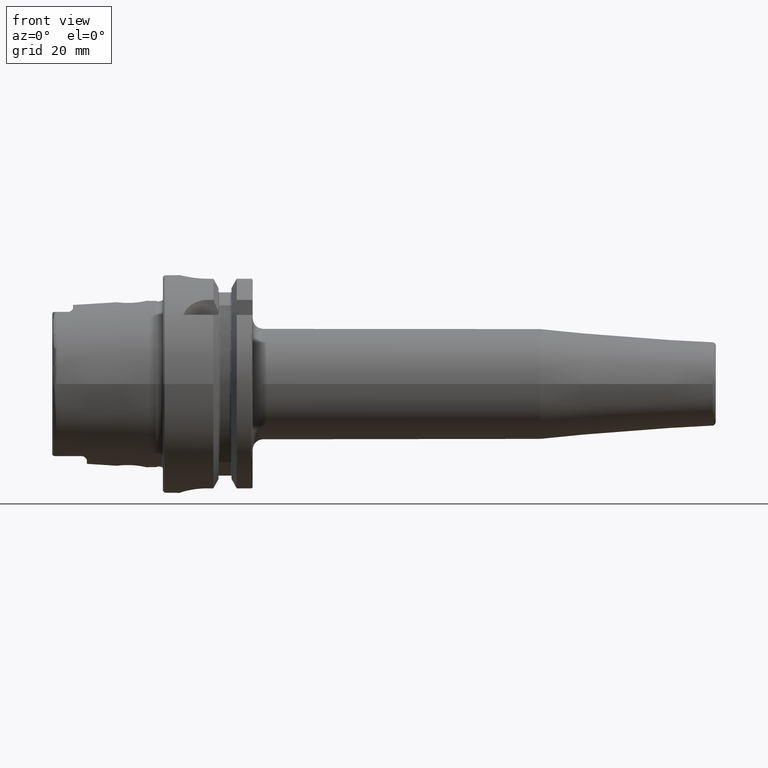
[diagram: clean part render]
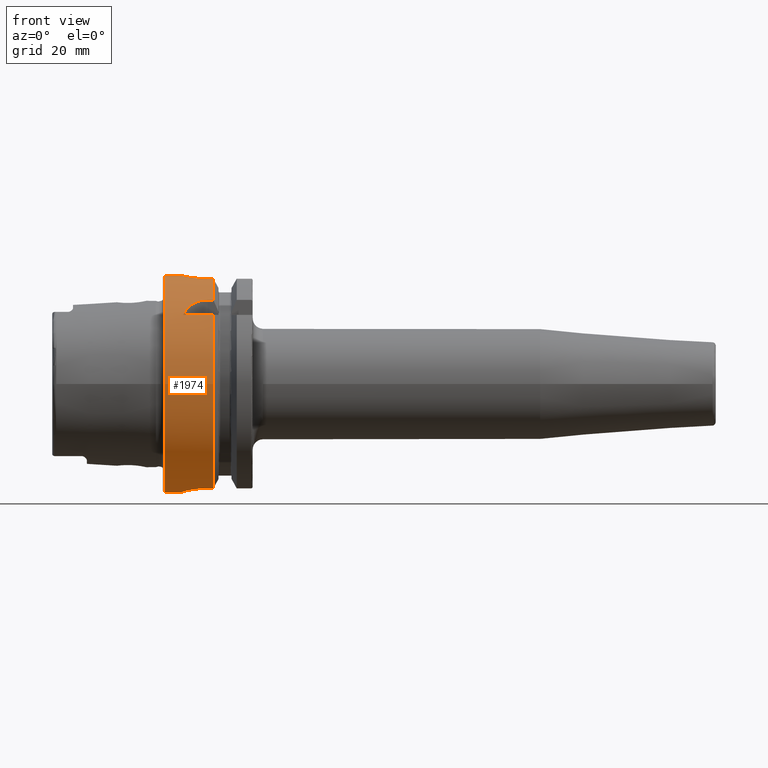
[diagram: same view with one face highlighted and labeled with its STEP entity id]
A machine part, front view. The second image highlights one B-rep face of the part: STEP entity #1974.
In plain terms, the highlighted cylindrical surface (bore or boss wall) has radius 31.5 mm, axis along (1, 0, 0).
Its self-contained STEP definition (entity closure, byte-faithful):
#57=B_SPLINE_CURVE_WITH_KNOTS('',3,(#3648,#3649,#3650,#3651,#3652,#3653,
#3654,#3655,#3656,#3657,#3658,#3659,#3660,#3661,#3662,#3663,#3664,#3665,
#3666,#3667,#3668,#3669,#3670,#3671,#3672,#3673),.UNSPECIFIED.,.F.,.F.,
(4,2,2,2,2,2,2,2,2,2,2,2,4),(0.,0.188688694287612,0.377377388575223,0.56606194688798,
0.754746505200737,0.943431063513494,1.13211562182625,1.32080431611386,1.50949301040147,
1.69818170468909,1.8868703989767,2.07555495728945,2.26423951560221),
 .UNSPECIFIED.);
#58=B_SPLINE_CURVE_WITH_KNOTS('',3,(#3674,#3675,#3676,#3677,#3678,#3679,
#3680,#3681,#3682,#3683),.UNSPECIFIED.,.F.,.F.,(4,2,2,2,4),(2.26423951560221,
2.45292407391497,2.64160863222773,2.83029732651534,3.01898602080295),
 .UNSPECIFIED.);
#61=B_SPLINE_CURVE_WITH_KNOTS('',3,(#3740,#3741,#3742,#3743,#3744,#3745,
#3746,#3747,#3748,#3749,#3750,#3751),.UNSPECIFIED.,.F.,.F.,(4,2,2,2,2,4),
(1.1085154204615,1.31979218709236,1.52798350480179,1.73617482251122,1.90421770126337,
2.07226058001552),.UNSPECIFIED.);
#71=B_SPLINE_CURVE_WITH_KNOTS('',3,(#3920,#3921,#3922,#3923,#3924,#3925,
#3926,#3927,#3928,#3929),.UNSPECIFIED.,.F.,.F.,(4,2,2,2,4),(1.20927420824097,
1.5131742975437,1.81707438684643,2.12000449915965,2.42293461147287),
 .UNSPECIFIED.);
#74=B_SPLINE_CURVE_WITH_KNOTS('',3,(#3955,#3956,#3957,#3958,#3959,#3960,
#3961,#3962,#3963,#3964),.UNSPECIFIED.,.F.,.F.,(4,2,2,2,4),(0.,0.30293011231322,
0.605860224626439,0.90976031392917,1.2136604032319),.UNSPECIFIED.);
#84=B_SPLINE_CURVE_WITH_KNOTS('',3,(#4110,#4111,#4112,#4113,#4114,#4115,
#4116,#4117,#4118,#4119,#4120,#4121,#4122,#4123,#4124,#4125,#4126,#4127),
 .UNSPECIFIED.,.F.,.F.,(4,2,2,2,2,2,2,2,4),(0.,0.302805879979318,0.605611759958635,
0.908372461246501,1.21113316253437,1.51389386382223,1.8166545651101,2.11946044508942,
2.42226632506874),.UNSPECIFIED.);
#117=FACE_BOUND('',#381,.T.);
#260=FACE_OUTER_BOUND('',#380,.T.);
#380=EDGE_LOOP('',(#1664,#1665,#1666,#1667,#1668,#1669,#1670,#1671,#1672,
#1673,#1674,#1675,#1676,#1677,#1678,#1679,#1680,#1681));
#381=EDGE_LOOP('',(#1682,#1683));
#473=LINE('',#3715,#577);
#478=LINE('',#3760,#582);
#496=LINE('',#3937,#600);
#497=LINE('',#3941,#601);
#509=LINE('',#4104,#613);
#512=LINE('',#4134,#616);
#514=LINE('',#4140,#618);
#577=VECTOR('',#2504,10.);
#582=VECTOR('',#2515,10.);
#600=VECTOR('',#2579,10.);
#601=VECTOR('',#2582,10.);
#613=VECTOR('',#2660,10.);
#616=VECTOR('',#2671,10.);
#618=VECTOR('',#2679,31.5);
#684=CIRCLE('',#2134,31.5);
#685=CIRCLE('',#2135,31.5);
#693=CIRCLE('',#2155,31.5);
#694=CIRCLE('',#2157,31.5);
#708=CIRCLE('',#2192,31.5);
#709=CIRCLE('',#2193,31.5);
#849=VERTEX_POINT('',#3645);
#850=VERTEX_POINT('',#3647);
#858=VERTEX_POINT('',#3712);
#859=VERTEX_POINT('',#3714);
#863=VERTEX_POINT('',#3739);
#865=VERTEX_POINT('',#3756);
#870=VERTEX_POINT('',#3772);
#871=VERTEX_POINT('',#3774);
#896=VERTEX_POINT('',#3918);
#897=VERTEX_POINT('',#3919);
#898=VERTEX_POINT('',#3939);
#899=VERTEX_POINT('',#3940);
#902=VERTEX_POINT('',#3954);
#903=VERTEX_POINT('',#3969);
#919=VERTEX_POINT('',#4101);
#920=VERTEX_POINT('',#4103);
#921=VERTEX_POINT('',#4109);
#923=VERTEX_POINT('',#4139);
#1077=EDGE_CURVE('',#850,#849,#57,.T.);
#1078=EDGE_CURVE('',#849,#850,#58,.T.);
#1087=EDGE_CURVE('',#859,#858,#473,.T.);
#1093=EDGE_CURVE('',#858,#863,#61,.T.);
#1097=EDGE_CURVE('',#863,#865,#478,.T.);
#1103=EDGE_CURVE('',#859,#870,#684,.T.);
#1104=EDGE_CURVE('',#870,#871,#685,.T.);
#1138=EDGE_CURVE('',#896,#897,#71,.T.);
#1142=EDGE_CURVE('',#897,#871,#496,.T.);
#1143=EDGE_CURVE('',#898,#899,#497,.T.);
#1148=EDGE_CURVE('',#899,#902,#74,.T.);
#1150=EDGE_CURVE('',#902,#896,#693,.T.);
#1151=EDGE_CURVE('',#898,#903,#694,.T.);
#1183=EDGE_CURVE('',#920,#919,#509,.T.);
#1185=EDGE_CURVE('',#919,#921,#84,.T.);
#1189=EDGE_CURVE('',#921,#903,#512,.T.);
#1191=EDGE_CURVE('',#920,#865,#708,.T.);
#1192=EDGE_CURVE('',#870,#923,#514,.T.);
#1193=EDGE_CURVE('',#923,#923,#709,.T.);
#1664=ORIENTED_EDGE('',*,*,#1097,.T.);
#1665=ORIENTED_EDGE('',*,*,#1191,.F.);
#1666=ORIENTED_EDGE('',*,*,#1183,.T.);
#1667=ORIENTED_EDGE('',*,*,#1185,.T.);
#1668=ORIENTED_EDGE('',*,*,#1189,.T.);
#1669=ORIENTED_EDGE('',*,*,#1151,.F.);
#1670=ORIENTED_EDGE('',*,*,#1143,.T.);
#1671=ORIENTED_EDGE('',*,*,#1148,.T.);
#1672=ORIENTED_EDGE('',*,*,#1150,.T.);
#1673=ORIENTED_EDGE('',*,*,#1138,.T.);
#1674=ORIENTED_EDGE('',*,*,#1142,.T.);
#1675=ORIENTED_EDGE('',*,*,#1104,.F.);
#1676=ORIENTED_EDGE('',*,*,#1192,.T.);
#1677=ORIENTED_EDGE('',*,*,#1193,.T.);
#1678=ORIENTED_EDGE('',*,*,#1192,.F.);
#1679=ORIENTED_EDGE('',*,*,#1103,.F.);
#1680=ORIENTED_EDGE('',*,*,#1087,.T.);
#1681=ORIENTED_EDGE('',*,*,#1093,.T.);
#1682=ORIENTED_EDGE('',*,*,#1077,.T.);
#1683=ORIENTED_EDGE('',*,*,#1078,.T.);
#1889=CYLINDRICAL_SURFACE('',#2191,31.5);
#1974=ADVANCED_FACE('',(#260,#117),#1889,.T.);
#2134=AXIS2_PLACEMENT_3D('',#3773,#2528,#2529);
#2135=AXIS2_PLACEMENT_3D('',#3775,#2530,#2531);
#2155=AXIS2_PLACEMENT_3D('',#3967,#2590,#2591);
#2157=AXIS2_PLACEMENT_3D('',#3970,#2594,#2595);
#2191=AXIS2_PLACEMENT_3D('',#4137,#2675,#2676);
#2192=AXIS2_PLACEMENT_3D('',#4138,#2677,#2678);
#2193=AXIS2_PLACEMENT_3D('',#4141,#2680,#2681);
#2504=DIRECTION('',(-1.,0.,0.));
#2515=DIRECTION('',(1.,0.,0.));
#2528=DIRECTION('center_axis',(1.,0.,0.));
#2529=DIRECTION('ref_axis',(0.,0.,-1.));
#2530=DIRECTION('center_axis',(1.,0.,0.));
#2531=DIRECTION('ref_axis',(0.,0.,-1.));
#2579=DIRECTION('',(1.,0.,0.));
#2582=DIRECTION('',(-1.,0.,0.));
#2590=DIRECTION('center_axis',(-1.,0.,0.));
#2591=DIRECTION('ref_axis',(0.,1.,0.));
#2594=DIRECTION('center_axis',(1.,0.,0.));
#2595=DIRECTION('ref_axis',(0.,0.,-1.));
#2660=DIRECTION('',(-1.,0.,0.));
#2671=DIRECTION('',(1.,0.,0.));
#2675=DIRECTION('center_axis',(1.,0.,0.));
#2676=DIRECTION('ref_axis',(0.,1.,0.));
#2677=DIRECTION('center_axis',(1.,0.,0.));
#2678=DIRECTION('ref_axis',(0.,0.,-1.));
#2679=DIRECTION('',(-1.,0.,0.));
#2680=DIRECTION('center_axis',(1.,0.,0.));
#2681=DIRECTION('ref_axis',(0.,0.,-1.));
#3645=CARTESIAN_POINT('',(12.,31.5,-6.12323399573677E-16));
#3647=CARTESIAN_POINT('',(7.,31.100643080168,5.));
#3648=CARTESIAN_POINT('Ctrl Pts',(7.,31.100643080168,5.));
#3649=CARTESIAN_POINT('Ctrl Pts',(6.37103768570796,31.100643080168,5.));
#3650=CARTESIAN_POINT('Ctrl Pts',(5.70089281579202,31.1216953112949,4.87408354368814));
#3651=CARTESIAN_POINT('Ctrl Pts',(4.46931934300962,31.1973810209855,4.36348784122736));
#3652=CARTESIAN_POINT('Ctrl Pts',(3.90779781350673,31.2508828501623,3.97886562537221));
#3653=CARTESIAN_POINT('Ctrl Pts',(3.021144092268,31.3510329557602,3.09221190413348));
#3654=CARTESIAN_POINT('Ctrl Pts',(2.63651425348544,31.4042391414288,2.5306861925578));
#3655=CARTESIAN_POINT('Ctrl Pts',(2.12591301120586,31.4792463697936,1.29909839144709));
#3656=CARTESIAN_POINT('Ctrl Pts',(2.,31.5,0.62894852770919));
#3657=CARTESIAN_POINT('Ctrl Pts',(2.,31.5,-0.62894852770919));
#3658=CARTESIAN_POINT('Ctrl Pts',(2.12591301120586,31.4792463697936,-1.29909839144709));
#3659=CARTESIAN_POINT('Ctrl Pts',(2.63651425348544,31.4042391414288,-2.5306861925578));
#3660=CARTESIAN_POINT('Ctrl Pts',(3.021144092268,31.3510329557602,-3.09221190413348));
#3661=CARTESIAN_POINT('Ctrl Pts',(3.90779781350673,31.2508828501623,-3.97886562537221));
#3662=CARTESIAN_POINT('Ctrl Pts',(4.46931934300962,31.1973810209855,-4.36348784122736));
#3663=CARTESIAN_POINT('Ctrl Pts',(5.70089281579202,31.1216953112949,-4.87408354368814));
#3664=CARTESIAN_POINT('Ctrl Pts',(6.37103768570796,31.100643080168,-5.));
#3665=CARTESIAN_POINT('Ctrl Pts',(7.62896231429204,31.100643080168,-5.));
#3666=CARTESIAN_POINT('Ctrl Pts',(8.29910718420798,31.1216953112949,-4.87408354368814));
#3667=CARTESIAN_POINT('Ctrl Pts',(9.53068065699038,31.1973810209855,-4.36348784122736));
#3668=CARTESIAN_POINT('Ctrl Pts',(10.0922021864933,31.2508828501623,-3.97886562537221));
#3669=CARTESIAN_POINT('Ctrl Pts',(10.978855907732,31.3510329557602,-3.09221190413348));
#3670=CARTESIAN_POINT('Ctrl Pts',(11.3634857465146,31.4042391414288,-2.53068619255779));
#3671=CARTESIAN_POINT('Ctrl Pts',(11.8740869887941,31.4792463697936,-1.29909839144708));
#3672=CARTESIAN_POINT('Ctrl Pts',(12.,31.5,-0.62894852770919));
#3673=CARTESIAN_POINT('Ctrl Pts',(12.,31.5,-4.16333634234434E-16));
#3674=CARTESIAN_POINT('Ctrl Pts',(12.,31.5,-1.11022302462516E-15));
#3675=CARTESIAN_POINT('Ctrl Pts',(12.,31.5,0.628948527709188));
#3676=CARTESIAN_POINT('Ctrl Pts',(11.8740869887941,31.4792463697936,1.29909839144708));
#3677=CARTESIAN_POINT('Ctrl Pts',(11.3634857465146,31.4042391414288,2.53068619255779));
#3678=CARTESIAN_POINT('Ctrl Pts',(10.978855907732,31.3510329557602,3.09221190413348));
#3679=CARTESIAN_POINT('Ctrl Pts',(10.0922021864933,31.2508828501623,3.97886562537221));
#3680=CARTESIAN_POINT('Ctrl Pts',(9.53068065699038,31.1973810209855,4.36348784122736));
#3681=CARTESIAN_POINT('Ctrl Pts',(8.29910718420798,31.1216953112949,4.87408354368814));
#3682=CARTESIAN_POINT('Ctrl Pts',(7.62896231429204,31.100643080168,5.));
#3683=CARTESIAN_POINT('Ctrl Pts',(7.,31.100643080168,5.));
#3712=CARTESIAN_POINT('',(5.88828609634419,-24.3361870472759,20.));
#3714=CARTESIAN_POINT('',(14.6225009252407,-24.3361870472759,20.));
#3715=CARTESIAN_POINT('',(7.56125046262034,-24.3361870472759,20.));
#3739=CARTESIAN_POINT('',(13.,-20.,24.3361870472759));
#3740=CARTESIAN_POINT('Ctrl Pts',(5.88828609634419,-24.3361870472759,20.));
#3741=CARTESIAN_POINT('Ctrl Pts',(6.11069532820048,-23.9044753723342,20.5253108035937));
#3742=CARTESIAN_POINT('Ctrl Pts',(6.38325999044306,-23.4713523250807,21.0173865932788));
#3743=CARTESIAN_POINT('Ctrl Pts',(7.044898076458,-22.6317364276543,21.9186738868096));
#3744=CARTESIAN_POINT('Ctrl Pts',(7.46714468561685,-22.1861072682036,22.3682920878559));
#3745=CARTESIAN_POINT('Ctrl Pts',(8.46725531403812,-21.3767026700071,23.143042657319));
#3746=CARTESIAN_POINT('Ctrl Pts',(9.04646427720221,-21.0147449478223,23.4683362269255));
#3747=CARTESIAN_POINT('Ctrl Pts',(10.1145001432702,-20.5200081116516,23.9011603796022));
#3748=CARTESIAN_POINT('Ctrl Pts',(10.670823971716,-20.3234249831704,24.0673462447194));
#3749=CARTESIAN_POINT('Ctrl Pts',(11.8334528721306,-20.063121855676,24.2847667849476));
#3750=CARTESIAN_POINT('Ctrl Pts',(12.4398570708262,-20.,24.3361870472759));
#3751=CARTESIAN_POINT('Ctrl Pts',(13.,-20.,24.3361870472759));
#3756=CARTESIAN_POINT('',(14.6225009252407,-20.,24.3361870472759));
#3760=CARTESIAN_POINT('',(7.56125046262035,-20.,24.3361870472759));
#3772=CARTESIAN_POINT('',(14.6225009252407,-31.5,-3.85763741731416E-15));
#3773=CARTESIAN_POINT('Origin',(14.6225009252407,0.,0.));
#3774=CARTESIAN_POINT('',(14.6225009252407,-9.,-30.1869176962472));
#3775=CARTESIAN_POINT('Origin',(14.6225009252407,0.,0.));
#3918=CARTESIAN_POINT('',(5.,-0.999999999999999,-31.4841229828623));
#3919=CARTESIAN_POINT('',(13.,-9.,-30.1869176962472));
#3920=CARTESIAN_POINT('Ctrl Pts',(5.,-0.999999999999997,-31.4841229828623));
#3921=CARTESIAN_POINT('Ctrl Pts',(5.,-2.01248971281587,-31.4519642432536));
#3922=CARTESIAN_POINT('Ctrl Pts',(5.2037733306458,-3.08756640398171,-31.3640631381934));
#3923=CARTESIAN_POINT('Ctrl Pts',(6.02370102555041,-5.05836608044729,-31.1070804719497));
#3924=CARTESIAN_POINT('Ctrl Pts',(6.63955745341061,-5.95454409907418,-30.9405445582004));
#3925=CARTESIAN_POINT('Ctrl Pts',(8.05472493283182,-7.36715009628369,-30.6348764237341));
#3926=CARTESIAN_POINT('Ctrl Pts',(8.9496642215883,-7.98063403850821,-30.4752177477269));
#3927=CARTESIAN_POINT('Ctrl Pts',(10.9171740660538,-8.79719825889174,-30.2496070227108));
#3928=CARTESIAN_POINT('Ctrl Pts',(11.9902329589559,-9.,-30.1869176962472));
#3929=CARTESIAN_POINT('Ctrl Pts',(13.,-9.,-30.1869176962472));
#3937=CARTESIAN_POINT('',(7.56125046262035,-8.99999999999999,-30.1869176962472));
#3939=CARTESIAN_POINT('',(14.6225009252407,9.,-30.1869176962472));
#3940=CARTESIAN_POINT('',(13.,9.00000000000001,-30.1869176962472));
#3941=CARTESIAN_POINT('',(7.56125046262034,9.00000000000001,-30.1869176962472));
#3954=CARTESIAN_POINT('',(5.,1.,-31.4841229828623));
#3955=CARTESIAN_POINT('Ctrl Pts',(13.,9.00000000000001,-30.1869176962472));
#3956=CARTESIAN_POINT('Ctrl Pts',(11.9902329589559,9.00000000000001,-30.1869176962472));
#3957=CARTESIAN_POINT('Ctrl Pts',(10.9171740660538,8.79719825889175,-30.2496070227108));
#3958=CARTESIAN_POINT('Ctrl Pts',(8.9496642215883,7.98063403850822,-30.4752177477269));
#3959=CARTESIAN_POINT('Ctrl Pts',(8.05472493283182,7.3671500962837,-30.6348764237341));
#3960=CARTESIAN_POINT('Ctrl Pts',(6.63955745341061,5.95454409907419,-30.9405445582004));
#3961=CARTESIAN_POINT('Ctrl Pts',(6.02370102555041,5.0583660804473,-31.1070804719497));
#3962=CARTESIAN_POINT('Ctrl Pts',(5.2037733306458,3.08756640398172,-31.3640631381934));
#3963=CARTESIAN_POINT('Ctrl Pts',(5.,2.01248971281588,-31.4519642432536));
#3964=CARTESIAN_POINT('Ctrl Pts',(5.,1.00000000000001,-31.4841229828623));
#3967=CARTESIAN_POINT('Origin',(5.,0.,0.));
#3969=CARTESIAN_POINT('',(14.6225009252407,8.,30.4671954731642));
#3970=CARTESIAN_POINT('Origin',(14.6225009252407,0.,0.));
#4101=CARTESIAN_POINT('',(13.,-8.,30.4671954731642));
#4103=CARTESIAN_POINT('',(14.6225009252407,-8.,30.4671954731642));
#4104=CARTESIAN_POINT('',(7.56125046262034,-8.,30.4671954731642));
#4109=CARTESIAN_POINT('',(13.,8.,30.4671954731642));
#4110=CARTESIAN_POINT('Ctrl Pts',(13.,-8.,30.4671954731643));
#4111=CARTESIAN_POINT('Ctrl Pts',(11.9906470667356,-8.,30.4671954731643));
#4112=CARTESIAN_POINT('Ctrl Pts',(10.9172075930168,-7.79737202490167,30.5225803085525));
#4113=CARTESIAN_POINT('Ctrl Pts',(8.94758399331801,-6.97961067526075,30.719895002943));
#4114=CARTESIAN_POINT('Ctrl Pts',(8.05099322370438,-6.36470172268915,30.8586830127239));
#4115=CARTESIAN_POINT('Ctrl Pts',(6.63540388828045,-4.94911238726521,31.1170994373341));
#4116=CARTESIAN_POINT('Ctrl Pts',(6.02041263015313,-4.05247770930662,31.2539072689014));
#4117=CARTESIAN_POINT('Ctrl Pts',(5.20259114887399,-2.08269813865027,31.4466478906396));
#4118=CARTESIAN_POINT('Ctrl Pts',(5.,-1.00920233762622,31.5));
#4119=CARTESIAN_POINT('Ctrl Pts',(5.,1.00920233762622,31.5));
#4120=CARTESIAN_POINT('Ctrl Pts',(5.20259114887399,2.08269813865027,31.4466478906396));
#4121=CARTESIAN_POINT('Ctrl Pts',(6.02041263015313,4.05247770930662,31.2539072689014));
#4122=CARTESIAN_POINT('Ctrl Pts',(6.63540388828045,4.94911238726521,31.1170994373341));
#4123=CARTESIAN_POINT('Ctrl Pts',(8.05099322370439,6.36470172268915,30.8586830127239));
#4124=CARTESIAN_POINT('Ctrl Pts',(8.94758399331801,6.97961067526075,30.719895002943));
#4125=CARTESIAN_POINT('Ctrl Pts',(10.9172075930168,7.79737202490167,30.5225803085525));
#4126=CARTESIAN_POINT('Ctrl Pts',(11.9906470667356,8.,30.4671954731643));
#4127=CARTESIAN_POINT('Ctrl Pts',(13.,8.,30.4671954731643));
#4134=CARTESIAN_POINT('',(7.56125046262035,8.,30.4671954731642));
#4137=CARTESIAN_POINT('Origin',(7.56125046262034,0.,0.));
#4138=CARTESIAN_POINT('Origin',(14.6225009252407,0.,0.));
#4139=CARTESIAN_POINT('',(0.5,-31.5,-3.85763741731416E-15));
#4140=CARTESIAN_POINT('',(7.56125046262034,-31.5,-3.85763741731416E-15));
#4141=CARTESIAN_POINT('Origin',(0.5,0.,0.));